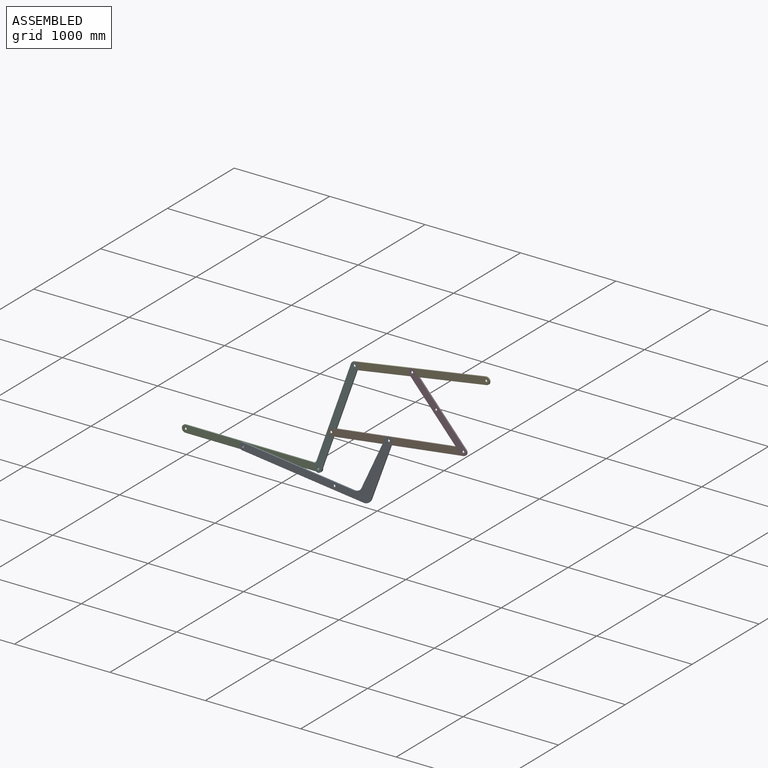
[diagram: assembled view]
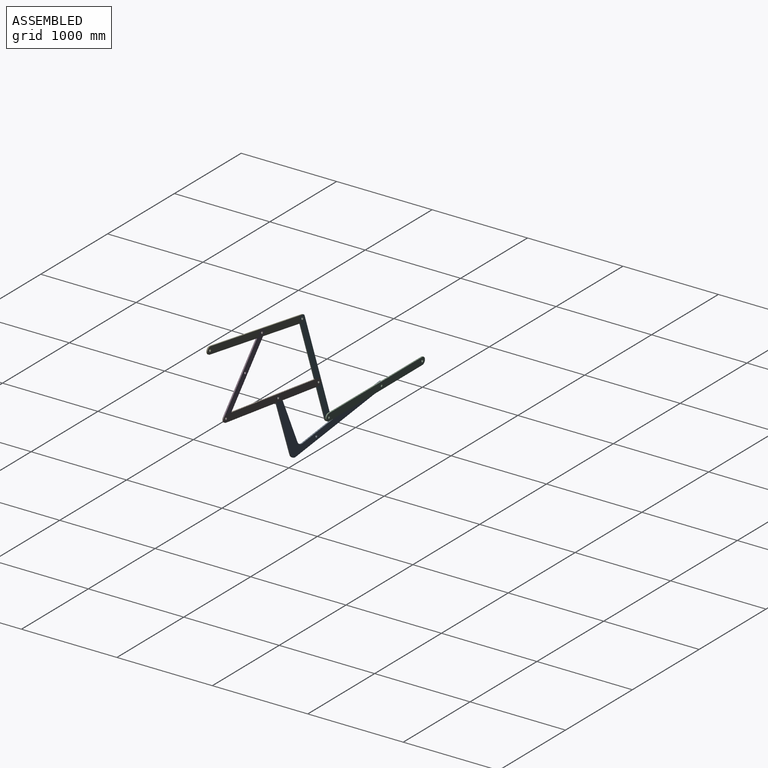
[diagram: assembled view, second angle]
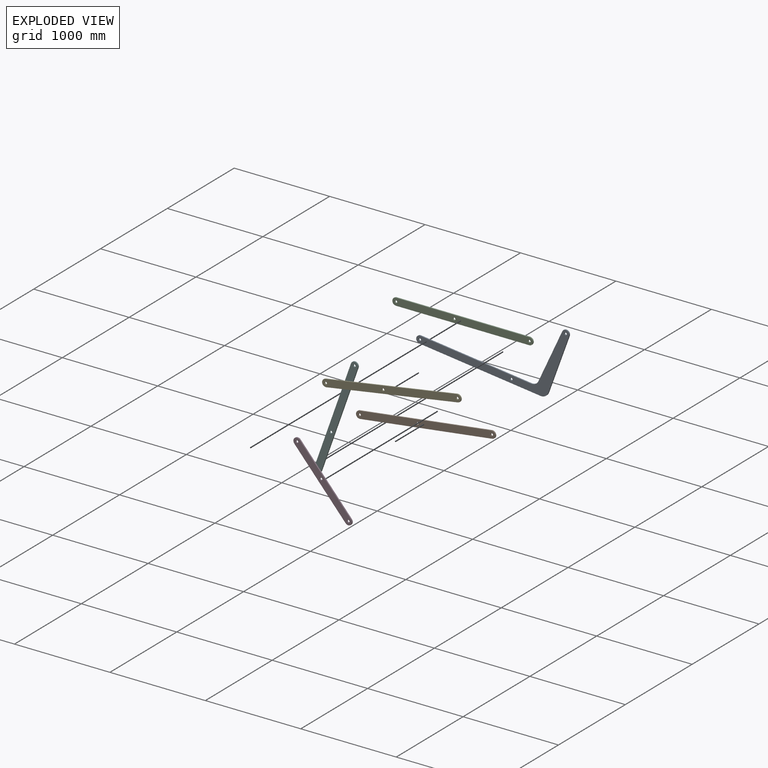
[diagram: exploded view]
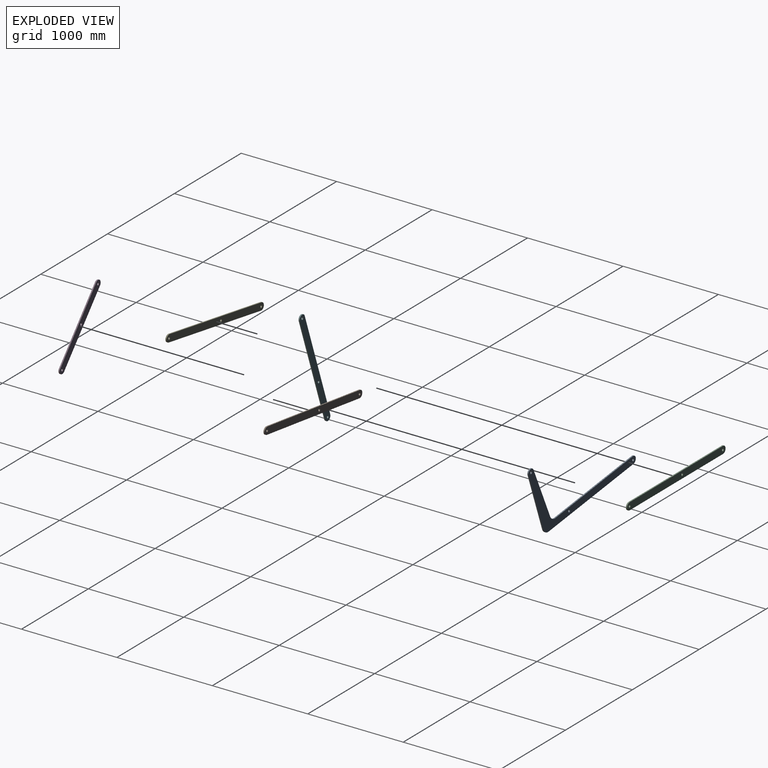
[diagram: exploded view, second angle]
ASSEMBLY  parts=6 mates=7
PART A: 13 faces, bbox 1535.8x12.7x722.1 mm
  f0: cylinder r=76.2mm len=72.54mm, axis (0,1,0), area 1218.9mm2, adj f1,f9,f11,f12
  f1: plane 1168.47x12.7mm, normal (0,0,1), area 14839.5mm2, adj f0,f2,f11,f12
  f2: cylinder r=38.1mm len=76.2mm, axis (0,1,0), area 1520.1mm2, adj f1,f3,f11,f12
  f3: plane 1279.58x12.7mm, normal (0,0,-1), area 16250.6mm2, adj f2,f4,f11,f12
  f4: cylinder r=76.2mm len=74.23mm, axis (0,1,0), area 1299.7mm2, adj f3,f5,f11,f12
  f5: plane 616.41x142.89mm, normal (0.97,0,-0.23), area 8036mm2, adj f4,f6,f11,f12
  f6: cylinder r=38.1mm len=74.37mm, axis (0,1,0), area 1479.7mm2, adj f5,f9,f11,f12
  f7: cylinder r=12.7mm len=25.4mm, axis (0,1,0), area 1013.4mm2, adj f11,f12
  f8: cylinder r=12.7mm len=25.4mm, axis (0,1,0), area 1013.4mm2, adj f11,f12
  f9: plane 566.62x182.31mm, normal (-0.95,0,0.31), area 7559.4mm2, adj f0,f6,f11,f12
  f10: cylinder r=12.7mm len=25.4mm, axis (0,1,0), area 1013.4mm2, adj f11,f12
  f11: plane 1535.78x722.11mm, normal (0,-1,0), area 170407.4mm2, adj f0,f1,f2,f3,f4,f5,f6,f7
  f12: plane 1535.78x722.11mm, normal (0,1,0), area 170407.4mm2, adj f0,f1,f2,f3,f4,f5,f6,f7
PART B: 9 faces, bbox 1473.2x12.7x76.2 mm
  f0: cylinder r=38.1mm len=76.2mm, axis (0,1,0), area 1520.1mm2, adj f1,f6,f7,f8
  f1: plane 1397x12.7mm, normal (0,0,-1), area 17741.9mm2, adj f0,f2,f7,f8
  f2: cylinder r=38.1mm len=76.2mm, axis (0,1,0), area 1520.1mm2, adj f1,f6,f7,f8
  f3: cylinder r=12.7mm len=25.4mm, axis (0,1,0), area 1013.4mm2, adj f7,f8
  f4: cylinder r=12.7mm len=25.4mm, axis (0,1,0), area 1013.4mm2, adj f7,f8
  f5: cylinder r=12.7mm len=25.4mm, axis (0,1,0), area 1013.4mm2, adj f7,f8
  f6: plane 1397x12.7mm, normal (0,0,1), area 17741.9mm2, adj f0,f2,f7,f8
  f7: plane 1473.2x76.2mm, normal (0,-1,0), area 109491.6mm2, adj f0,f1,f2,f3,f4,f5,f6
  f8: plane 1473.2x76.2mm, normal (0,1,0), area 109491.6mm2, adj f0,f1,f2,f3,f4,f5,f6
PART C: same geometry as B
PART D: 9 faces, bbox 889x12.7x76.2 mm
  f0: cylinder r=38.1mm len=76.2mm, axis (0,1,0), area 1520.1mm2, adj f1,f6,f7,f8
  f1: plane 812.8x12.7mm, normal (0,0,-1), area 10322.6mm2, adj f0,f2,f7,f8
  f2: cylinder r=38.1mm len=76.2mm, axis (0,1,0), area 1520.1mm2, adj f1,f6,f7,f8
  f3: cylinder r=12.7mm len=25.4mm, axis (0,1,0), area 1013.4mm2, adj f7,f8
  f4: cylinder r=12.7mm len=25.4mm, axis (0,1,0), area 1013.4mm2, adj f7,f8
  f5: cylinder r=12.7mm len=25.4mm, axis (0,1,0), area 1013.4mm2, adj f7,f8
  f6: plane 812.8x12.7mm, normal (0,0,1), area 10322.6mm2, adj f0,f2,f7,f8
  f7: plane 889x76.2mm, normal (0,-1,0), area 64975.6mm2, adj f0,f1,f2,f3,f4,f5,f6
  f8: plane 889x76.2mm, normal (0,1,0), area 64975.6mm2, adj f0,f1,f2,f3,f4,f5,f6
PART E: same geometry as B
PART F: 9 faces, bbox 1219.2x12.7x76.2 mm
  f0: cylinder r=38.1mm len=76.2mm, axis (0,1,0), area 1520.1mm2, adj f1,f6,f7,f8
  f1: plane 1143x12.7mm, normal (0,0,-1), area 14516.1mm2, adj f0,f2,f7,f8
  f2: cylinder r=38.1mm len=76.2mm, axis (0,1,0), area 1520.1mm2, adj f1,f6,f7,f8
  f3: cylinder r=12.7mm len=25.4mm, axis (0,1,0), area 1013.4mm2, adj f7,f8
  f4: cylinder r=12.7mm len=25.4mm, axis (0,1,0), area 1013.4mm2, adj f7,f8
  f5: cylinder r=12.7mm len=25.4mm, axis (0,1,0), area 1013.4mm2, adj f7,f8
  f6: plane 1143x12.7mm, normal (0,0,1), area 14516.1mm2, adj f0,f2,f7,f8
  f7: plane 1219.2x76.2mm, normal (0,-1,0), area 90136.8mm2, adj f0,f1,f2,f3,f4,f5,f6
  f8: plane 1219.2x76.2mm, normal (0,1,0), area 90136.8mm2, adj f0,f1,f2,f3,f4,f5,f6
PLACE A rot(axis=(0,1,0),7deg) t=(1290.26,-12.7,-83.82)mm
PLACE B rot(axis=(0,-1,0),7.5deg) t=(1532.81,-12.7,383.04)mm
PLACE C at identity fixed
PLACE D rot(axis=(0,1,0),48.6deg) t=(2380.6,-12.7,1175.49)mm
PLACE E rot(axis=(0,-1,0),9.3deg) t=(1778.96,-12.7,1077.29)mm
PLACE F rot(axis=(0.82,0,0.58),180deg) t=(1397,-25.4,0)mm
MATE revolute E.f5 <-> D.f3  axis (0,-1,0) through (2380.6,-25.4,1175.49)mm
MATE cylindrical F.f2 <-> E.f0  axis (0,1,0) through (1778.96,-12.7,1077.29)mm
MATE revolute D.f4 <-> B.f4  axis (0,-1,0) through (2917.83,-25.4,565.56)mm
MATE revolute A.f6 <-> B.f5  axis (0,-1,0) through (2137.18,-25.4,462.68)mm
MATE cylindrical C.f5 <-> A.f8  axis (0,-1,0) through (609.6,-12.7,0)mm
MATE revolute F.f0 <-> C.f4  axis (0,1,0) through (1397,-12.7,0)mm
MATE revolute F.f5 <-> B.f3  axis (0,-1,0) through (1532.81,-25.4,383.04)mm
